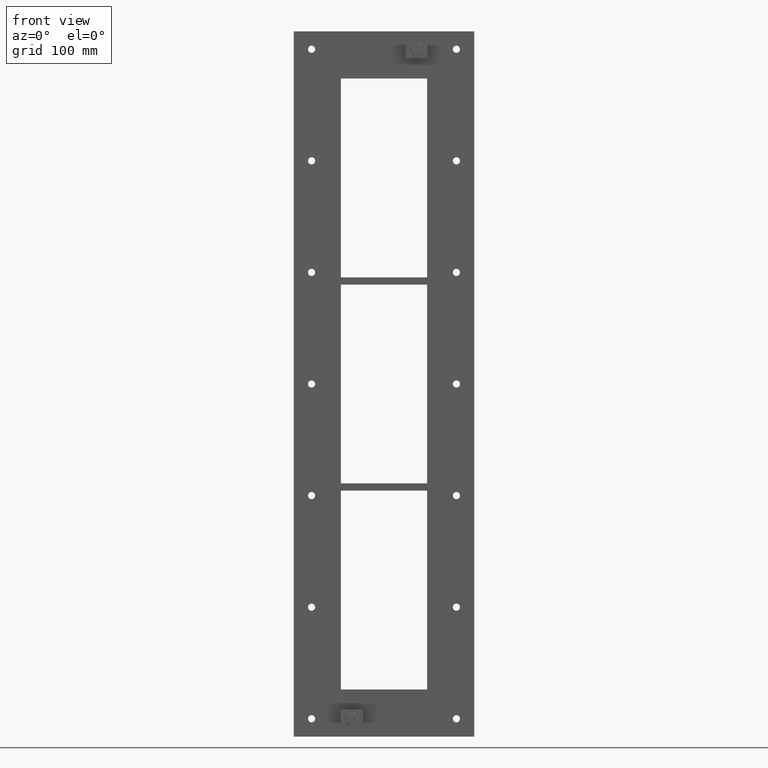
[diagram: clean part render]
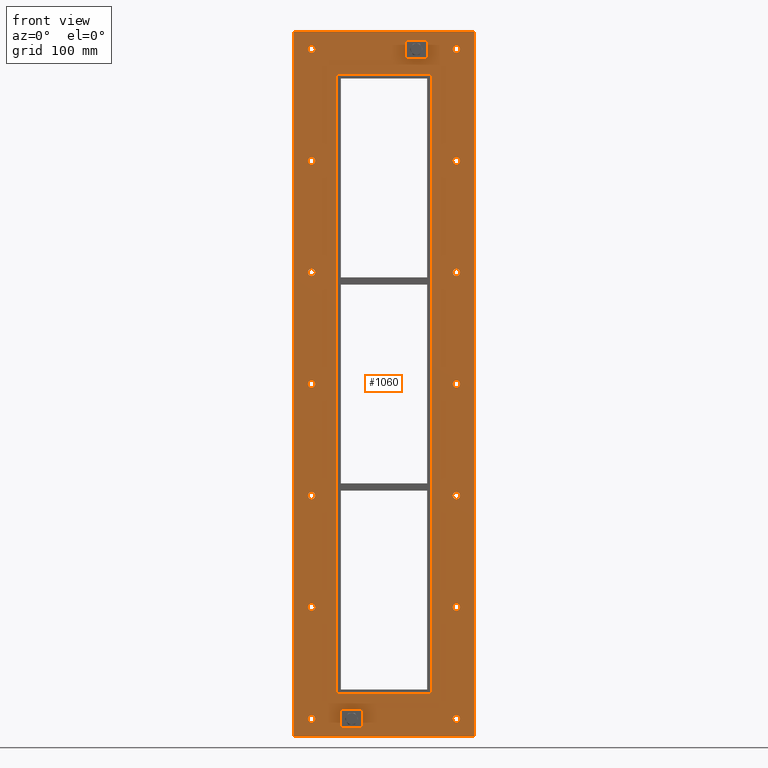
[diagram: same view with one face highlighted and labeled with its STEP entity id]
A machine part, front view. The second image highlights one B-rep face of the part: STEP entity #1060.
In plain terms, the highlighted planar face has unit normal (0, 1, 0).
Its self-contained STEP definition (entity closure, byte-faithful):
#84=CARTESIAN_POINT('',(-96.250000000000114,0.0,-468.0));
#85=VERTEX_POINT('',#84);
#86=CARTESIAN_POINT('',(-101.25000000000011,0.0,-468.0));
#87=DIRECTION('',(0.0,1.0,0.0));
#88=DIRECTION('',(1.0,0.0,0.0));
#89=AXIS2_PLACEMENT_3D('',#86,#87,#88);
#90=CIRCLE('',#89,5.0);
#91=EDGE_CURVE('',#85,#85,#90,.T.);
#112=CARTESIAN_POINT('',(106.24999999999989,0.0,-311.99999999999994));
#113=VERTEX_POINT('',#112);
#114=CARTESIAN_POINT('',(101.24999999999989,0.0,-311.99999999999994));
#115=DIRECTION('',(0.0,1.0,0.0));
#116=DIRECTION('',(1.0,0.0,0.0));
#117=AXIS2_PLACEMENT_3D('',#114,#115,#116);
#118=CIRCLE('',#117,5.0);
#119=EDGE_CURVE('',#113,#113,#118,.T.);
#140=CARTESIAN_POINT('',(-96.250000000000114,0.0,-311.99999999999994));
#141=VERTEX_POINT('',#140);
#142=CARTESIAN_POINT('',(-101.25000000000011,0.0,-311.99999999999994));
#143=DIRECTION('',(0.0,1.0,0.0));
#144=DIRECTION('',(1.0,0.0,0.0));
#145=AXIS2_PLACEMENT_3D('',#142,#143,#144);
#146=CIRCLE('',#145,5.0);
#147=EDGE_CURVE('',#141,#141,#146,.T.);
#168=CARTESIAN_POINT('',(106.24999999999989,0.0,-156.0));
#169=VERTEX_POINT('',#168);
#170=CARTESIAN_POINT('',(101.24999999999989,0.0,-156.0));
#171=DIRECTION('',(0.0,1.0,0.0));
#172=DIRECTION('',(1.0,0.0,0.0));
#173=AXIS2_PLACEMENT_3D('',#170,#171,#172);
#174=CIRCLE('',#173,5.0);
#175=EDGE_CURVE('',#169,#169,#174,.T.);
#196=CARTESIAN_POINT('',(-96.250000000000114,0.0,-156.0));
#197=VERTEX_POINT('',#196);
#198=CARTESIAN_POINT('',(-101.25000000000011,0.0,-156.0));
#199=DIRECTION('',(0.0,1.0,0.0));
#200=DIRECTION('',(1.0,0.0,0.0));
#201=AXIS2_PLACEMENT_3D('',#198,#199,#200);
#202=CIRCLE('',#201,5.0);
#203=EDGE_CURVE('',#197,#197,#202,.T.);
#224=CARTESIAN_POINT('',(106.24999999999989,0.0,0.0));
#225=VERTEX_POINT('',#224);
#226=CARTESIAN_POINT('',(101.24999999999989,0.0,0.0));
#227=DIRECTION('',(0.0,1.0,0.0));
#228=DIRECTION('',(1.0,0.0,0.0));
#229=AXIS2_PLACEMENT_3D('',#226,#227,#228);
#230=CIRCLE('',#229,5.0);
#231=EDGE_CURVE('',#225,#225,#230,.T.);
#252=CARTESIAN_POINT('',(-96.250000000000114,0.0,0.0));
#253=VERTEX_POINT('',#252);
#254=CARTESIAN_POINT('',(-101.25000000000011,0.0,0.0));
#255=DIRECTION('',(0.0,1.0,0.0));
#256=DIRECTION('',(1.0,0.0,0.0));
#257=AXIS2_PLACEMENT_3D('',#254,#255,#256);
#258=CIRCLE('',#257,5.0);
#259=EDGE_CURVE('',#253,#253,#258,.T.);
#280=CARTESIAN_POINT('',(106.24999999999989,0.0,156.0));
#281=VERTEX_POINT('',#280);
#282=CARTESIAN_POINT('',(101.24999999999989,0.0,156.0));
#283=DIRECTION('',(0.0,1.0,0.0));
#284=DIRECTION('',(1.0,0.0,0.0));
#285=AXIS2_PLACEMENT_3D('',#282,#283,#284);
#286=CIRCLE('',#285,5.0);
#287=EDGE_CURVE('',#281,#281,#286,.T.);
#308=CARTESIAN_POINT('',(-96.250000000000114,0.0,156.0));
#309=VERTEX_POINT('',#308);
#310=CARTESIAN_POINT('',(-101.25000000000011,0.0,156.0));
#311=DIRECTION('',(0.0,1.0,0.0));
#312=DIRECTION('',(1.0,0.0,0.0));
#313=AXIS2_PLACEMENT_3D('',#310,#311,#312);
#314=CIRCLE('',#313,5.0);
#315=EDGE_CURVE('',#309,#309,#314,.T.);
#336=CARTESIAN_POINT('',(106.24999999999989,0.0,312.0));
#337=VERTEX_POINT('',#336);
#338=CARTESIAN_POINT('',(101.24999999999989,0.0,312.0));
#339=DIRECTION('',(0.0,1.0,0.0));
#340=DIRECTION('',(1.0,0.0,0.0));
#341=AXIS2_PLACEMENT_3D('',#338,#339,#340);
#342=CIRCLE('',#341,5.0);
#343=EDGE_CURVE('',#337,#337,#342,.T.);
#364=CARTESIAN_POINT('',(-96.250000000000114,0.0,312.0));
#365=VERTEX_POINT('',#364);
#366=CARTESIAN_POINT('',(-101.25000000000011,0.0,312.0));
#367=DIRECTION('',(0.0,1.0,0.0));
#368=DIRECTION('',(1.0,0.0,0.0));
#369=AXIS2_PLACEMENT_3D('',#366,#367,#368);
#370=CIRCLE('',#369,5.0);
#371=EDGE_CURVE('',#365,#365,#370,.T.);
#392=CARTESIAN_POINT('',(106.24999999999989,0.0,-468.00000000000006));
#393=VERTEX_POINT('',#392);
#394=CARTESIAN_POINT('',(101.24999999999989,0.0,-468.00000000000006));
#395=DIRECTION('',(0.0,1.0,0.0));
#396=DIRECTION('',(1.0,0.0,0.0));
#397=AXIS2_PLACEMENT_3D('',#394,#395,#396);
#398=CIRCLE('',#397,5.0);
#399=EDGE_CURVE('',#393,#393,#398,.T.);
#420=CARTESIAN_POINT('',(-96.250000000000114,0.0,468.00000000000006));
#421=VERTEX_POINT('',#420);
#422=CARTESIAN_POINT('',(-101.25000000000011,0.0,468.00000000000006));
#423=DIRECTION('',(0.0,1.0,0.0));
#424=DIRECTION('',(1.0,0.0,0.0));
#425=AXIS2_PLACEMENT_3D('',#422,#423,#424);
#426=CIRCLE('',#425,5.0);
#427=EDGE_CURVE('',#421,#421,#426,.T.);
#448=CARTESIAN_POINT('',(106.24999999999989,0.0,468.00000000000006));
#449=VERTEX_POINT('',#448);
#450=CARTESIAN_POINT('',(101.24999999999989,0.0,468.00000000000006));
#451=DIRECTION('',(0.0,1.0,0.0));
#452=DIRECTION('',(1.0,0.0,0.0));
#453=AXIS2_PLACEMENT_3D('',#450,#451,#452);
#454=CIRCLE('',#453,5.0);
#455=EDGE_CURVE('',#449,#449,#454,.T.);
#909=CARTESIAN_POINT('',(0.0,0.0,0.0));
#910=DIRECTION('',(0.0,1.0,0.0));
#911=DIRECTION('',(0.0,0.0,1.0));
#912=AXIS2_PLACEMENT_3D('',#909,#910,#911);
#913=PLANE('',#912);
#914=CARTESIAN_POINT('',(-126.25,0.0,493.00000000000006));
#915=VERTEX_POINT('',#914);
#916=CARTESIAN_POINT('',(126.25,0.0,493.00000000000006));
#917=VERTEX_POINT('',#916);
#918=CARTESIAN_POINT('',(-126.25,0.0,493.00000000000006));
#919=DIRECTION('',(1.0,0.0,0.0));
#920=VECTOR('',#919,252.5);
#921=LINE('',#918,#920);
#922=EDGE_CURVE('',#915,#917,#921,.T.);
#923=ORIENTED_EDGE('',*,*,#922,.F.);
#924=CARTESIAN_POINT('',(-126.25,0.0,-493.00000000000006));
#925=VERTEX_POINT('',#924);
#926=CARTESIAN_POINT('',(-126.25,0.0,-493.00000000000006));
#927=DIRECTION('',(0.0,0.0,1.0));
#928=VECTOR('',#927,986.00000000000011);
#929=LINE('',#926,#928);
#930=EDGE_CURVE('',#925,#915,#929,.T.);
#931=ORIENTED_EDGE('',*,*,#930,.F.);
#932=CARTESIAN_POINT('',(126.25,0.0,-493.00000000000006));
#933=VERTEX_POINT('',#932);
#934=CARTESIAN_POINT('',(126.25,0.0,-493.00000000000006));
#935=DIRECTION('',(-1.0,0.0,0.0));
#936=VECTOR('',#935,252.5);
#937=LINE('',#934,#936);
#938=EDGE_CURVE('',#933,#925,#937,.T.);
#939=ORIENTED_EDGE('',*,*,#938,.F.);
#940=CARTESIAN_POINT('',(126.25,0.0,493.00000000000006));
#941=DIRECTION('',(0.0,0.0,-1.0));
#942=VECTOR('',#941,986.00000000000011);
#943=LINE('',#940,#942);
#944=EDGE_CURVE('',#917,#933,#943,.T.);
#945=ORIENTED_EDGE('',*,*,#944,.F.);
#946=EDGE_LOOP('',(#923,#931,#939,#945));
#947=FACE_OUTER_BOUND('',#946,.T.);
#948=ORIENTED_EDGE('',*,*,#91,.T.);
#949=EDGE_LOOP('',(#948));
#950=FACE_BOUND('',#949,.T.);
#951=ORIENTED_EDGE('',*,*,#119,.T.);
#952=EDGE_LOOP('',(#951));
#953=FACE_BOUND('',#952,.T.);
#954=ORIENTED_EDGE('',*,*,#147,.T.);
#955=EDGE_LOOP('',(#954));
#956=FACE_BOUND('',#955,.T.);
#957=ORIENTED_EDGE('',*,*,#175,.T.);
#958=EDGE_LOOP('',(#957));
#959=FACE_BOUND('',#958,.T.);
#960=ORIENTED_EDGE('',*,*,#203,.T.);
#961=EDGE_LOOP('',(#960));
#962=FACE_BOUND('',#961,.T.);
#963=ORIENTED_EDGE('',*,*,#231,.T.);
#964=EDGE_LOOP('',(#963));
#965=FACE_BOUND('',#964,.T.);
#966=ORIENTED_EDGE('',*,*,#259,.T.);
#967=EDGE_LOOP('',(#966));
#968=FACE_BOUND('',#967,.T.);
#969=ORIENTED_EDGE('',*,*,#287,.T.);
#970=EDGE_LOOP('',(#969));
#971=FACE_BOUND('',#970,.T.);
#972=ORIENTED_EDGE('',*,*,#315,.T.);
#973=EDGE_LOOP('',(#972));
#974=FACE_BOUND('',#973,.T.);
#975=ORIENTED_EDGE('',*,*,#343,.T.);
#976=EDGE_LOOP('',(#975));
#977=FACE_BOUND('',#976,.T.);
#978=ORIENTED_EDGE('',*,*,#371,.T.);
#979=EDGE_LOOP('',(#978));
#980=FACE_BOUND('',#979,.T.);
#981=ORIENTED_EDGE('',*,*,#399,.T.);
#982=EDGE_LOOP('',(#981));
#983=FACE_BOUND('',#982,.T.);
#984=ORIENTED_EDGE('',*,*,#427,.T.);
#985=EDGE_LOOP('',(#984));
#986=FACE_BOUND('',#985,.T.);
#987=ORIENTED_EDGE('',*,*,#455,.T.);
#988=EDGE_LOOP('',(#987));
#989=FACE_BOUND('',#988,.T.);
#990=CARTESIAN_POINT('',(-64.25,0.0,433.00000000000006));
#991=VERTEX_POINT('',#990);
#992=CARTESIAN_POINT('',(-66.25,0.0,431.0));
#993=VERTEX_POINT('',#992);
#994=CARTESIAN_POINT('',(-64.25,0.0,431.0));
#995=DIRECTION('',(0.0,-1.0,0.0));
#996=DIRECTION('',(-0.707106781186541,0.0,0.707106781186554));
#997=AXIS2_PLACEMENT_3D('',#994,#995,#996);
#998=CIRCLE('',#997,2.0);
#999=EDGE_CURVE('',#991,#993,#998,.T.);
#1000=ORIENTED_EDGE('',*,*,#999,.F.);
#1001=CARTESIAN_POINT('',(64.25,0.0,433.00000000000006));
#1002=VERTEX_POINT('',#1001);
#1003=CARTESIAN_POINT('',(64.25,0.0,433.00000000000006));
#1004=DIRECTION('',(-1.0,0.0,0.0));
#1005=VECTOR('',#1004,128.5);
#1006=LINE('',#1003,#1005);
#1007=EDGE_CURVE('',#1002,#991,#1006,.T.);
#1008=ORIENTED_EDGE('',*,*,#1007,.F.);
#1009=CARTESIAN_POINT('',(66.25,0.0,431.0));
#1010=VERTEX_POINT('',#1009);
#1011=CARTESIAN_POINT('',(64.25,0.0,431.0));
#1012=DIRECTION('',(0.0,-1.0,0.0));
#1013=DIRECTION('',(0.707106781186541,0.0,0.707106781186554));
#1014=AXIS2_PLACEMENT_3D('',#1011,#1012,#1013);
#1015=CIRCLE('',#1014,2.0);
#1016=EDGE_CURVE('',#1010,#1002,#1015,.T.);
#1017=ORIENTED_EDGE('',*,*,#1016,.F.);
#1018=CARTESIAN_POINT('',(66.25,0.0,-431.0));
#1019=VERTEX_POINT('',#1018);
#1020=CARTESIAN_POINT('',(66.25,0.0,-431.0));
#1021=DIRECTION('',(0.0,0.0,1.0));
#1022=VECTOR('',#1021,862.0);
#1023=LINE('',#1020,#1022);
#1024=EDGE_CURVE('',#1019,#1010,#1023,.T.);
#1025=ORIENTED_EDGE('',*,*,#1024,.F.);
#1026=CARTESIAN_POINT('',(64.25,0.0,-433.00000000000006));
#1027=VERTEX_POINT('',#1026);
#1028=CARTESIAN_POINT('',(64.25,0.0,-431.0));
#1029=DIRECTION('',(0.0,-1.0,0.0));
#1030=DIRECTION('',(0.707106781186541,0.0,-0.707106781186554));
#1031=AXIS2_PLACEMENT_3D('',#1028,#1029,#1030);
#1032=CIRCLE('',#1031,2.0);
#1033=EDGE_CURVE('',#1027,#1019,#1032,.T.);
#1034=ORIENTED_EDGE('',*,*,#1033,.F.);
#1035=CARTESIAN_POINT('',(-64.25,0.0,-433.00000000000006));
#1036=VERTEX_POINT('',#1035);
#1037=CARTESIAN_POINT('',(-64.25,0.0,-433.00000000000006));
#1038=DIRECTION('',(1.0,0.0,0.0));
#1039=VECTOR('',#1038,128.5);
#1040=LINE('',#1037,#1039);
#1041=EDGE_CURVE('',#1036,#1027,#1040,.T.);
#1042=ORIENTED_EDGE('',*,*,#1041,.F.);
#1043=CARTESIAN_POINT('',(-66.25,0.0,-431.0));
#1044=VERTEX_POINT('',#1043);
#1045=CARTESIAN_POINT('',(-64.25,0.0,-431.0));
#1046=DIRECTION('',(0.0,-1.0,0.0));
#1047=DIRECTION('',(-0.707106781186541,0.0,-0.707106781186554));
#1048=AXIS2_PLACEMENT_3D('',#1045,#1046,#1047);
#1049=CIRCLE('',#1048,2.0);
#1050=EDGE_CURVE('',#1044,#1036,#1049,.T.);
#1051=ORIENTED_EDGE('',*,*,#1050,.F.);
#1052=CARTESIAN_POINT('',(-66.25,0.0,431.0));
#1053=DIRECTION('',(0.0,0.0,-1.0));
#1054=VECTOR('',#1053,862.0);
#1055=LINE('',#1052,#1054);
#1056=EDGE_CURVE('',#993,#1044,#1055,.T.);
#1057=ORIENTED_EDGE('',*,*,#1056,.F.);
#1058=EDGE_LOOP('',(#1000,#1008,#1017,#1025,#1034,#1042,#1051,#1057));
#1059=FACE_BOUND('',#1058,.T.);
#1060=ADVANCED_FACE('',(#947,#950,#953,#956,#959,#962,#965,#968,#971,#974,#977,#980,#983,#986,#989,#1059),#913,.F.);